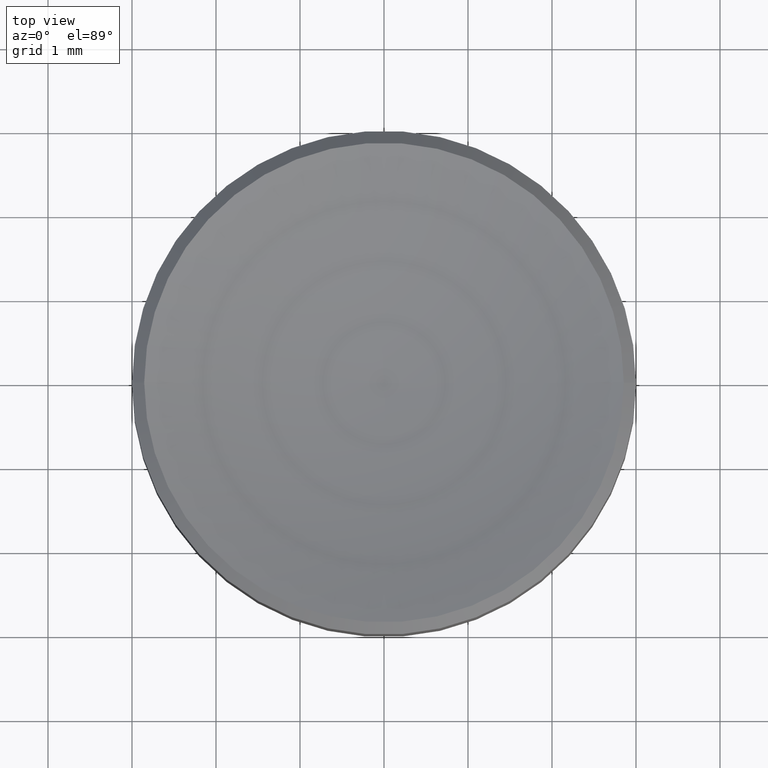
[diagram: clean part render]
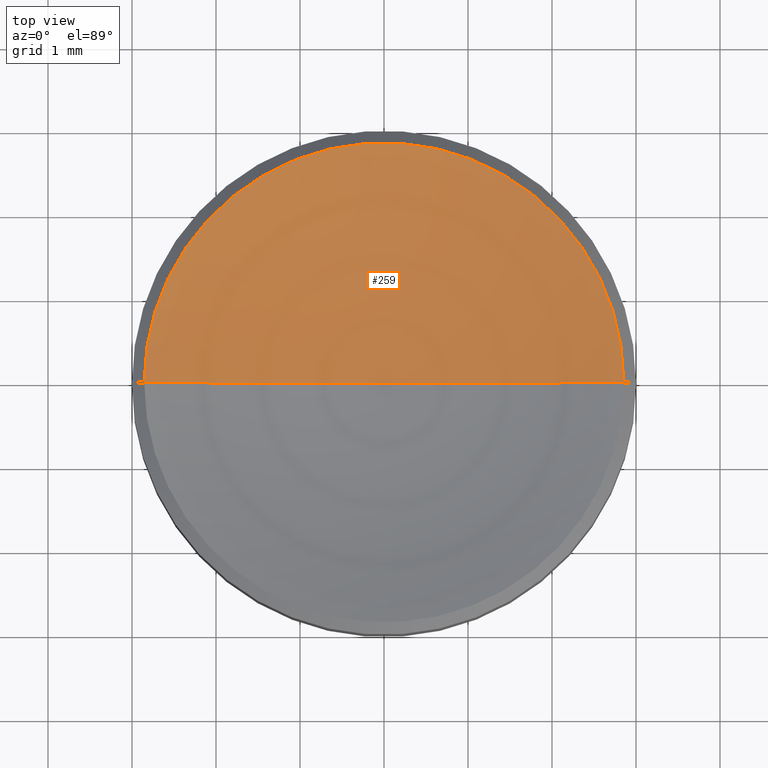
[diagram: same view with one face highlighted and labeled with its STEP entity id]
A machine part, top view. The second image highlights one B-rep face of the part: STEP entity #259.
In plain terms, the highlighted toroidal blend (fillet) surface has major radius 0.0104 mm and minor (blend) radius 8.26 mm.
Its self-contained STEP definition (entity closure, byte-faithful):
#4 = AXIS2_PLACEMENT_3D ( 'NONE', #81, #102, #186 ) ;
#5 = EDGE_CURVE ( 'NONE', #262, #117, #28, .T. ) ;
#7 = DIRECTION ( 'NONE',  ( 1.000000000000000000, 0.000000000000000000, 0.000000000000000000 ) ) ;
#13 = AXIS2_PLACEMENT_3D ( 'NONE', #113, #183, #7 ) ;
#17 = VERTEX_POINT ( 'NONE', #82 ) ;
#28 = CIRCLE ( 'NONE', #4, 8.259999999999999787 ) ;
#30 = CARTESIAN_POINT ( 'NONE',  ( 0.000000000000000000, 0.000000000000000000, 2.005191786043217572 ) ) ;
#47 = AXIS2_PLACEMENT_3D ( 'NONE', #30, #219, #246 ) ;
#49 = ORIENTED_EDGE ( 'NONE', *, *, #105, .T. ) ;
#50 = CARTESIAN_POINT ( 'NONE',  ( 0.000000000000000000, 0.000000000000000000, 1.500000000000000000 ) ) ;
#67 = DIRECTION ( 'NONE',  ( 0.000000000000000000, 0.000000000000000000, -1.000000000000000000 ) ) ;
#81 = CARTESIAN_POINT ( 'NONE',  ( -0.01040122243469864156, 1.273782376187333161E-18, 9.759993451242674922 ) ) ;
#82 = CARTESIAN_POINT ( 'NONE',  ( 2.854808213956783192, 0.000000000000000000, 2.005191786043217572 ) ) ;
#87 = CARTESIAN_POINT ( 'NONE',  ( -2.854808213956783192, 3.496131741401746917E-16, 2.005191786043217572 ) ) ;
#102 = DIRECTION ( 'NONE',  ( 1.224646799147353207E-16, 1.000000000000000000, 0.000000000000000000 ) ) ;
#105 = EDGE_CURVE ( 'NONE', #262, #17, #257, .T. ) ;
#113 = CARTESIAN_POINT ( 'NONE',  ( 0.000000000000000000, 0.000000000000000000, 9.759993451242674922 ) ) ;
#117 = VERTEX_POINT ( 'NONE', #87 ) ;
#136 = AXIS2_PLACEMENT_3D ( 'NONE', #194, #232, #67 ) ;
#139 = FACE_OUTER_BOUND ( 'NONE', #226, .T. ) ;
#174 = CIRCLE ( 'NONE', #47, 2.854808213956783192 ) ;
#183 = DIRECTION ( 'NONE',  ( -0.000000000000000000, -0.000000000000000000, 1.000000000000000000 ) ) ;
#186 = DIRECTION ( 'NONE',  ( -1.000000000000000000, 1.224646799147353207E-16, 0.000000000000000000 ) ) ;
#190 = ORIENTED_EDGE ( 'NONE', *, *, #5, .F. ) ;
#194 = CARTESIAN_POINT ( 'NONE',  ( 0.01040122243469864156, 0.000000000000000000, 9.759993451242674922 ) ) ;
#214 = TOROIDAL_SURFACE ( 'NONE', #13, 0.01040122243469864156, 8.259999999999999787 ) ;
#219 = DIRECTION ( 'NONE',  ( -0.000000000000000000, -0.000000000000000000, 1.000000000000000000 ) ) ;
#226 = EDGE_LOOP ( 'NONE', ( #190, #49, #230 ) ) ;
#229 = EDGE_CURVE ( 'NONE', #17, #117, #174, .T. ) ;
#230 = ORIENTED_EDGE ( 'NONE', *, *, #229, .T. ) ;
#232 = DIRECTION ( 'NONE',  ( 0.000000000000000000, -1.000000000000000000, 0.000000000000000000 ) ) ;
#246 = DIRECTION ( 'NONE',  ( 1.000000000000000000, 0.000000000000000000, 0.000000000000000000 ) ) ;
#257 = CIRCLE ( 'NONE', #136, 8.259999999999999787 ) ;
#259 = ADVANCED_FACE ( 'NONE', ( #139 ), #214, .F. ) ;
#262 = VERTEX_POINT ( 'NONE', #50 ) ;